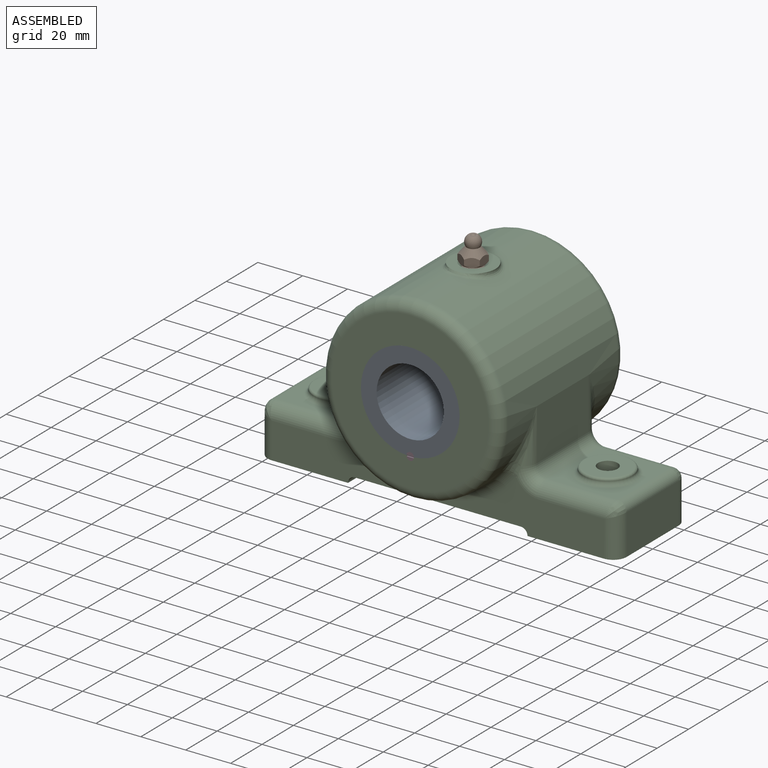
[diagram: assembled view]
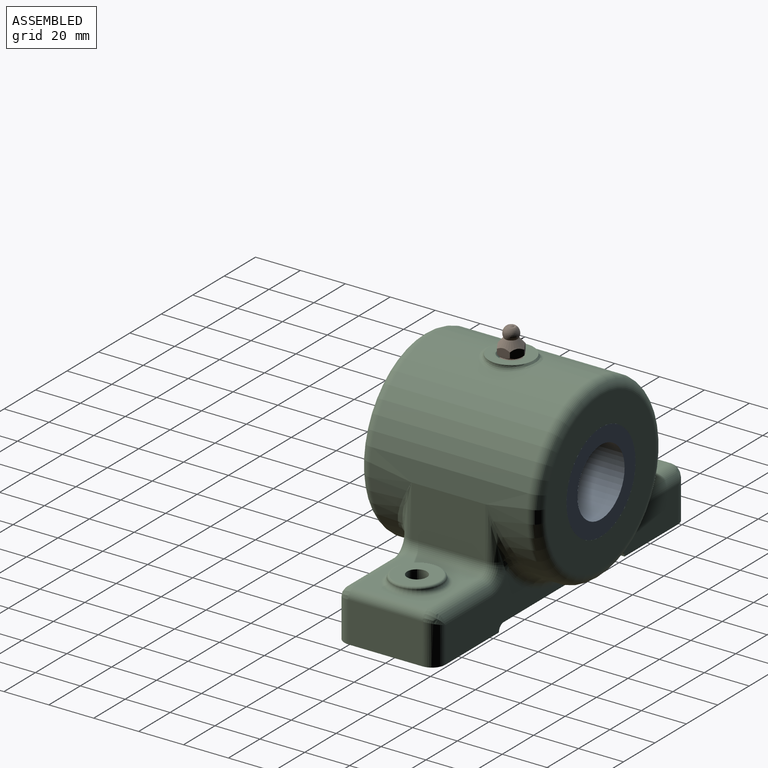
[diagram: assembled view, second angle]
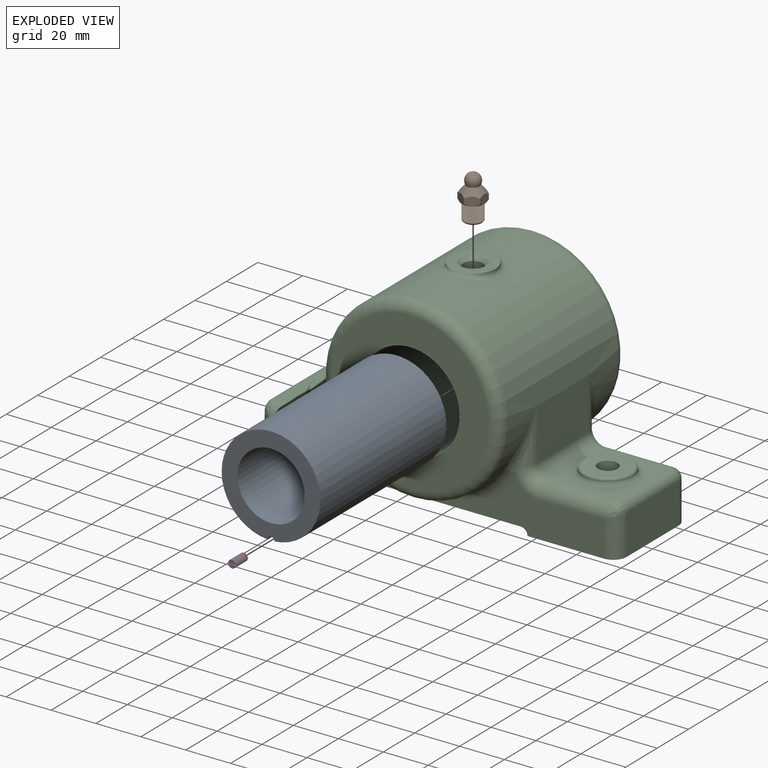
[diagram: exploded view]
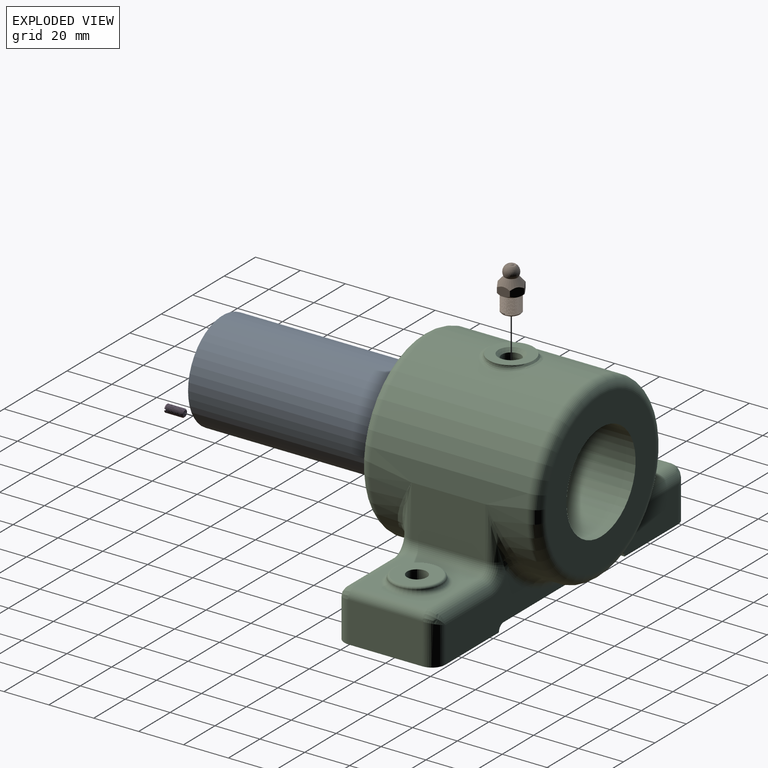
[diagram: exploded view, second angle]
ASSEMBLY  parts=4 mates=3
PART A: 6 faces, bbox 44x80x44 mm
  f0: cylinder r=22mm len=80mm, axis (0,1,0), area 11031.3mm2, adj f1,f3,f4,f5
  f1: plane 44x43.94mm, normal (0,-1,0), area 809.7mm2, adj f0,f2,f5
  f2: cylinder r=15mm len=80mm, axis (0,1,0), area 7539.8mm2, adj f1,f3
  f3: plane 44x44mm, normal (0,1,0), area 813.7mm2, adj f0,f2
  f4: cone r=0mm half-angle=59deg, axis (0,-1,0), area 4.6mm2, adj f0,f5
  f5: cylinder r=1.6mm len=8mm, axis (0,-1,0), area 39.3mm2, adj f0,f1,f4
PART B: 27 faces, bbox 12.1x12.1x21 mm
  f0: plane 5.56x4.57mm, normal (0.5,0.87,0), area 19.8mm2, adj f1,f5,f6,f7,f8
  f1: plane 5.56x4.57mm, normal (-0.5,0.87,0), area 19.8mm2, adj f0,f2,f6,f8,f9
  f2: plane 6.34x4.57mm, normal (-1,0,0), area 19.8mm2, adj f1,f3,f6,f9,f10
  f3: plane 5.56x4.57mm, normal (-0.5,-0.87,0), area 19.8mm2, adj f2,f4,f6,f10,f11
  f4: plane 5.56x4.57mm, normal (0.5,-0.87,0), area 19.8mm2, adj f3,f5,f6,f11,f12
  f5: plane 6.34x4.57mm, normal (1,0,0), area 19.8mm2, adj f0,f4,f6,f7,f12
  f6: cone r=2.8mm half-angle=40.7deg, axis (0,0,-1), area 94.9mm2, adj f0,f1,f2,f3,f4,f5,f25
  f7: cone r=6.77mm half-angle=45deg, axis (0,0,1), area 3mm2, adj f0,f5,f13
  f8: cone r=6.77mm half-angle=45deg, axis (0,0,1), area 3mm2, adj f0,f1,f13
  f9: cone r=6.77mm half-angle=45deg, axis (0,0,1), area 3mm2, adj f1,f2,f13
  f10: cone r=6.77mm half-angle=45deg, axis (0,0,1), area 3mm2, adj f2,f3,f13
  f11: cone r=6.77mm half-angle=45deg, axis (0,0,1), area 3mm2, adj f3,f4,f13
  f12: cone r=6.77mm half-angle=45deg, axis (0,0,1), area 3mm2, adj f4,f5,f13
  f13: plane 10x10mm, normal (0,0,-1), area 21.8mm2, adj f7,f8,f9,f10,f11,f12,f14,f23
  f14: cylinder r=4.25mm len=8.5mm, axis (0,0,1), area -21.1mm2, adj f13,f17,f20,f21,f22
  f15: plane 7.5x7.5mm, normal (0,0,-1), area 24.5mm2, adj f17,f18
  f16: plane 3x3mm, normal (0,0,-1), area 7.1mm2, adj f18
  f17: cone r=3.75mm half-angle=45deg, axis (0,0,1), area 17.8mm2, adj f14,f15
  f18: torus R=1.5mm, axis (0,0,-1), area 21.1mm2, adj f15,f16
  f19: plane 0.46x0.4mm, normal (0,-1,0), area 0.1mm2, adj f21,f22,f23
  f20: plane 0.46x0.4mm, normal (0,1,0), area 0.1mm2, adj f14,f21,f22
  f21: bspline ~9.82x8.5mm, area 187.9mm2, adj f14,f19,f20,f22,f23
  f22: bspline ~9.82x8.5mm, area 187.9mm2, adj f14,f19,f20,f21
  f23: cylinder r=4.25mm len=8.5mm, axis (0,0,-1), area 6mm2, adj f13,f19,f21
  f24: sphere r=1.5mm, area 4.1mm2, adj f26
  f25: sphere r=3.3mm, area 92.2mm2, adj f6,f26
  f26: plane 3.79x3.79mm, normal (0,0,1), area 7.8mm2, adj f24,f25
PART C: 74 faces, bbox 160.1x80.1x95.9 mm
  f0: cylinder r=22mm len=80mm, axis (0,-1,0), area 11011.6mm2, adj f1,f4,f15,f72,f73
  f1: plane 70x70mm, normal (0,-1,0), area 2323.8mm2, adj f0,f71,f73
  f2: cylinder r=10mm len=13.02mm, axis (0,0,1), area 6.8mm2, adj f18,f36
  f3: plane 45x40mm, normal (0,0,-1), area 1723.7mm2, adj f6,f13,f14,f23,f26,f54,f59
  f4: cylinder r=2.5mm len=5.09mm, axis (0,0,1), area 80mm2, adj f0,f20
  f5: cylinder r=40mm len=80mm, axis (0,1,0), area 10736.3mm2, adj f8,f9,f34,f35,f36,f37,f60,f61
  f6: plane 33x18mm, normal (1,0,0), area 594mm2, adj f3,f28,f54,f59
  f7: plane 33x31mm, normal (0,0,1), area 492.1mm2, adj f28,f30,f39,f52,f57
  f8: plane 33x23mm, normal (1,0,0), area 759mm2, adj f5,f30,f50,f55
  f9: plane 33x23mm, normal (-1,0,0), area 759mm2, adj f5,f31,f40,f45
  f10: plane 33x31mm, normal (0,0,1), area 492.1mm2, adj f29,f31,f38,f42,f47
  f11: plane 33x18mm, normal (-1,0,0), area 594mm2, adj f12,f29,f44,f49
  f12: plane 45x40mm, normal (0,0,-1), area 1723.7mm2, adj f11,f13,f14,f24,f27,f44,f49
  f13: plane 148x21.98mm, normal (0,-1,0), area 1753.3mm2, adj f3,f12,f25,f26,f27,f41,f42,f44
  f14: plane 148x21.98mm, normal (0,1,0), area 1753.3mm2, adj f3,f12,f25,f26,f27,f46,f47,f49
  f15: plane 70x70mm, normal (0,1,0), area 2327.9mm2, adj f0,f70
  f16: plane 20x20mm, normal (0,0,1), area 253.3mm2, adj f24,f32
  f17: plane 20x20mm, normal (0,0,1), area 253.3mm2, adj f23,f33
  f18: plane 20.1x20.1mm, normal (0,0,1), area 210.3mm2, adj f2,f19,f22,f34,f37
  f19: cylinder r=10mm len=13.02mm, axis (0,0,1), area 6.8mm2, adj f18,f35
  f20: cone r=0mm half-angle=59deg, axis (0,0,1), area 43.3mm2, adj f4,f21
  f21: cylinder r=4.25mm len=11.5mm, axis (0,0,1), area 307.1mm2, adj f20,f22
  f22: cone r=4.25mm half-angle=45deg, axis (0,0,1), area 66.6mm2, adj f18,f21
  f23: cylinder r=4.4mm len=25mm, axis (0,0,1), area 691.2mm2, adj f3,f17
  f24: cylinder r=4.4mm len=25mm, axis (0,0,1), area 691.2mm2, adj f12,f16
  f25: plane 74x45mm, normal (0,0,-1), area 3330mm2, adj f13,f14,f26,f27
  f26: cylinder r=3mm len=45mm, axis (0,1,0), area 212.1mm2, adj f3,f13,f14,f25
  f27: cylinder r=3mm len=45mm, axis (0,-1,0), area 212.1mm2, adj f12,f13,f14,f25
  f28: cylinder r=4mm len=33mm, axis (0,1,0), area 207.3mm2, adj f6,f7,f53,f58
  f29: cylinder r=4mm len=33mm, axis (0,1,0), area 207.3mm2, adj f10,f11,f43,f48
  f30: cylinder r=5mm len=33mm, axis (0,-1,0), area 259.2mm2, adj f7,f8,f51,f56
  f31: cylinder r=5mm len=33mm, axis (0,-1,0), area 259.2mm2, adj f9,f10,f41,f46
  f32: torus R=10mm, axis (0,0,1), area 105mm2, adj f16,f38
  f33: torus R=10mm, axis (0,0,1), area 105mm2, adj f17,f39
  f34: bspline ~18.41x6.05mm, area 43.1mm2, adj f5,f18,f35,f36
  f35: bspline ~15.62x3.84mm, area 40.7mm2, adj f5,f19,f34,f37
  f36: bspline ~18.14x5.24mm, area 40.7mm2, adj f2,f5,f34,f37
  f37: bspline ~18.41x6.05mm, area 43.1mm2, adj f5,f18,f35,f36
  f38: torus R=13mm, axis (0,0,1), area 231.5mm2, adj f10,f32
  f39: torus R=13mm, axis (0,0,-1), area 231.5mm2, adj f7,f33
  f40: cylinder r=6mm len=23mm, axis (0,0,1), area 78.1mm2, adj f9,f41,f65
  f41: torus R=11mm, axis (0,-1,0), area 98.3mm2, adj f13,f31,f40,f42,f66
  f42: cylinder r=6mm len=31mm, axis (1,0,0), area 285.3mm2, adj f10,f13,f41,f43
  f43: bspline ~7.29x6mm, area 39mm2, adj f29,f42,f44
  f44: cylinder r=6mm len=18mm, axis (0,0,1), area 162.8mm2, adj f11,f12,f13,f43
  f45: cylinder r=6mm len=23mm, axis (0,0,-1), area 78.1mm2, adj f9,f46,f60
  f46: torus R=11mm, axis (0,-1,0), area 98.3mm2, adj f14,f31,f45,f47,f61
  f47: cylinder r=6mm len=31mm, axis (-1,0,0), area 285.3mm2, adj f10,f14,f46,f48
  f48: bspline ~7.29x6mm, area 39mm2, adj f29,f47,f49
  f49: cylinder r=6mm len=18mm, axis (0,0,-1), area 162.8mm2, adj f11,f12,f14,f48
  f50: cylinder r=6mm len=23mm, axis (0,0,-1), area 78.1mm2, adj f8,f51,f69
  f51: torus R=11mm, axis (0,-1,0), area 98.3mm2, adj f13,f30,f50,f52,f68
  f52: cylinder r=6mm len=31mm, axis (1,0,0), area 285.3mm2, adj f7,f13,f51,f53
  f53: bspline ~7.29x6mm, area 39mm2, adj f28,f52,f54
  f54: cylinder r=6mm len=18mm, axis (0,0,-1), area 162.8mm2, adj f3,f6,f13,f53
  f55: cylinder r=6mm len=23mm, axis (0,0,1), area 78.1mm2, adj f8,f56,f64
  f56: torus R=11mm, axis (0,-1,0), area 98.3mm2, adj f14,f30,f55,f57,f63
  f57: cylinder r=6mm len=31mm, axis (-1,0,0), area 285.3mm2, adj f7,f14,f56,f58
  f58: bspline ~7.29x6mm, area 39mm2, adj f28,f57,f59
  f59: cylinder r=6mm len=18mm, axis (0,0,1), area 162.8mm2, adj f3,f6,f14,f58
  f60: bspline ~23.98x10.23mm, area 69mm2, adj f5,f45,f61
  f61: bspline ~9.21x6.83mm, area 35.1mm2, adj f5,f46,f60,f62
  f62: torus R=45mm, axis (0,-1,0), area 590.3mm2, adj f5,f14,f61,f63
  f63: bspline ~9.2x6.83mm, area 35.1mm2, adj f5,f56,f62,f64
  f64: bspline ~25.04x10.47mm, area 69mm2, adj f5,f55,f63
  f65: bspline ~25.04x10.47mm, area 69mm2, adj f5,f40,f66
  f66: bspline ~9.2x6.83mm, area 35.1mm2, adj f5,f41,f65,f67
  f67: torus R=45mm, axis (0,-1,0), area 590.3mm2, adj f5,f13,f66,f68
  f68: bspline ~9.2x6.83mm, area 35.1mm2, adj f5,f51,f67,f69
  f69: bspline ~23.98x10.23mm, area 69mm2, adj f5,f50,f68
  f70: torus R=35mm, axis (0,-1,0), area 1884.3mm2, adj f5,f15
  f71: torus R=35mm, axis (0,-1,0), area 1884.3mm2, adj f1,f5
  f72: cone r=0mm half-angle=59deg, axis (0,-1,0), area 4.8mm2, adj f0,f73
  f73: cylinder r=1.6mm len=8mm, axis (0,-1,0), area 41.1mm2, adj f0,f1,f72
PART D: 15 faces, bbox 3.5x8x4 mm
  f0: cylinder r=1.75mm len=7.29mm, axis (0,-1,0), area 13.9mm2, adj f2,f7,f9,f10,f12,f14
  f1: cylinder r=1.75mm len=3.45mm, axis (0,-1,0), area 0.4mm2, adj f4,f7,f13
  f2: cone r=1.75mm half-angle=45deg, axis (0,-1,0), area 4.4mm2, adj f0,f5,f10,f11
  f3: cylinder r=1.75mm len=3.45mm, axis (0,-1,0), area 1.4mm2, adj f6,f8,f12
  f4: plane 3.45x1.45mm, normal (0,-1,0), area 3.8mm2, adj f1,f7
  f5: plane 2.7x2.7mm, normal (0,1,0), area 5.7mm2, adj f2
  f6: plane 3.45x1.45mm, normal (0,-1,0), area 3.8mm2, adj f3,f8
  f7: plane 3.45x0.5mm, normal (0,0,1), area 1.6mm2, adj f0,f1,f4,f9,f12,f13,f14
  f8: plane 3.45x0.5mm, normal (0,0,-1), area 1.7mm2, adj f3,f6,f9,f10,f12
  f9: plane 3.3x0.61mm, normal (0,-1,0), area 2mm2, adj f0,f7,f8,f12
  f10: bspline ~7.56x4.04mm, area 58.5mm2, adj f0,f2,f8,f11,f12
  f11: plane 0.26x0.19mm, normal (0,0,1), area 0mm2, adj f2,f10,f12
  f12: bspline ~7.56x4.04mm, area 59.4mm2, adj f0,f3,f7,f8,f9,f10,f11
  f13: bspline ~3.5x2.02mm, area 1.3mm2, adj f1,f7,f14
  f14: bspline ~3.5x2.02mm, area 1.3mm2, adj f0,f7,f13
PLACE A t=(0,0,50)mm
PLACE B t=(0,0,102)mm
PLACE C at identity fixed
PLACE D t=(0,-40,28)mm
MATE revolute B.f6 <-> C.f2  axis (0,0,-1) through (0,0,91)mm
MATE revolute C.f0 <-> A.f0  axis (0,-1,0) through (0,0,50)mm
MATE revolute D.f0 <-> C.f72  axis (0,-1,0) through (0,-40,28)mm
